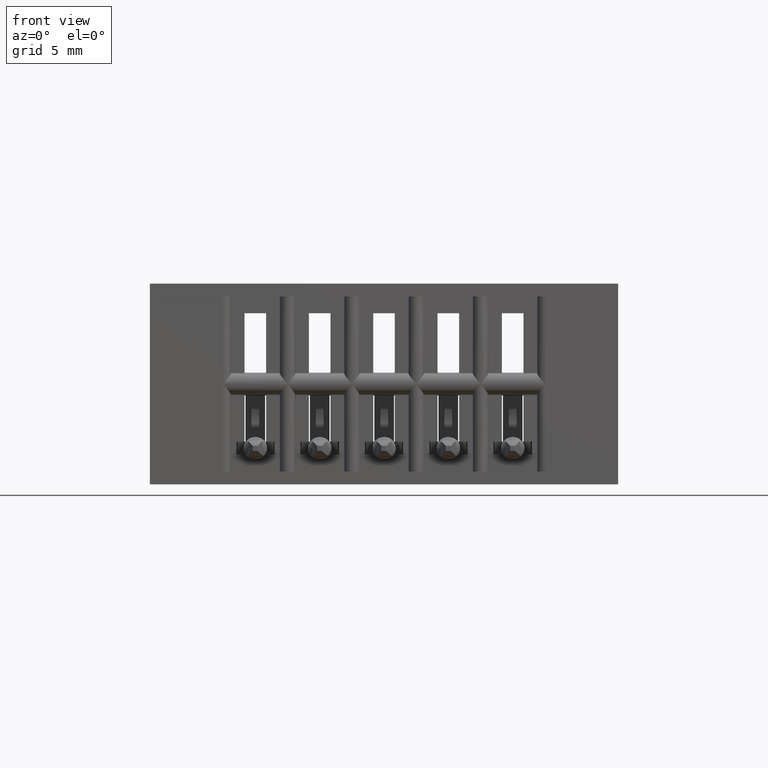
[diagram: clean part render]
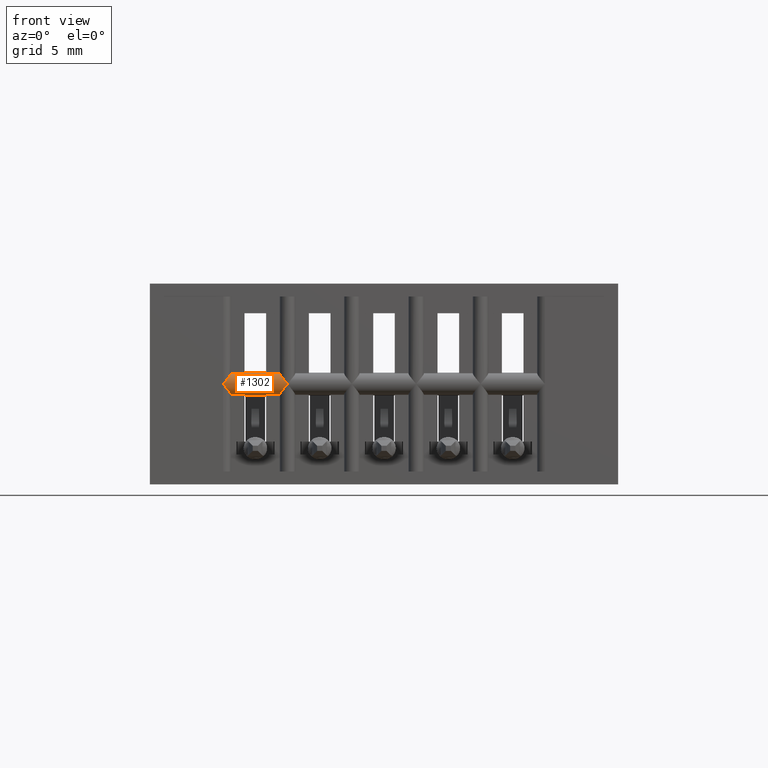
[diagram: same view with one face highlighted and labeled with its STEP entity id]
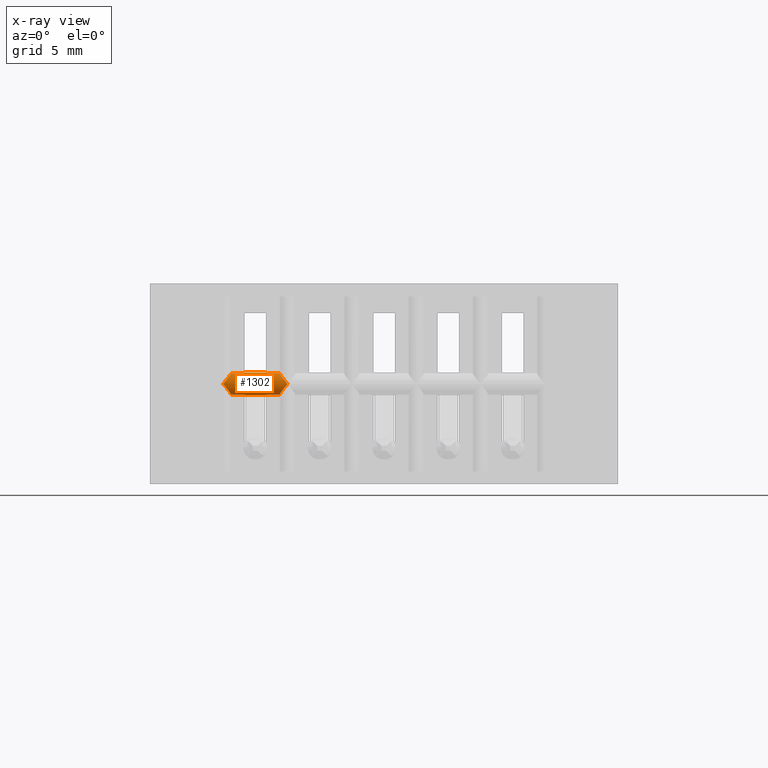
[diagram: x-ray of the same camera — body ghosted, the highlighted face saturated]
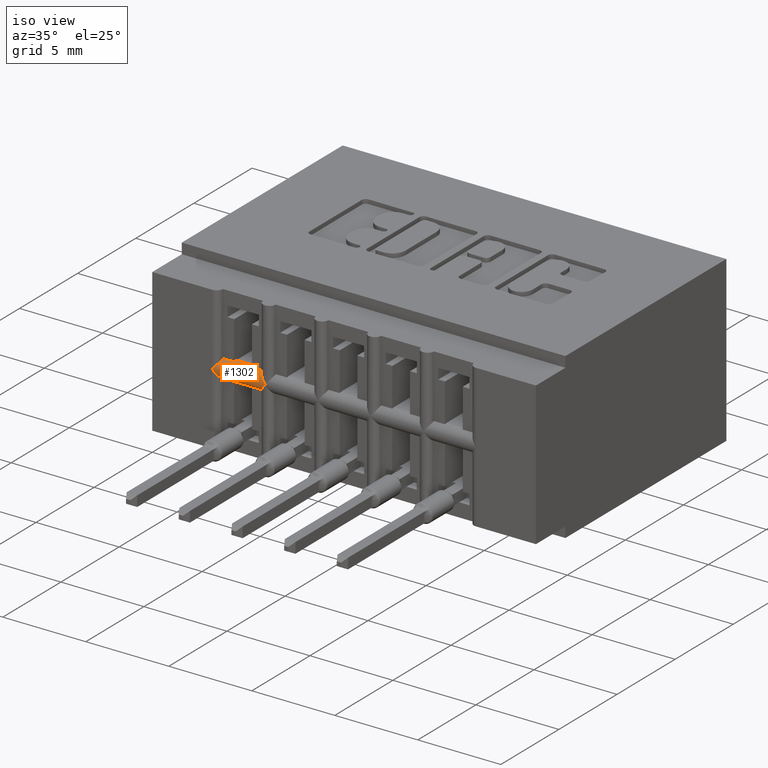
[diagram: same view with one face highlighted and labeled with its STEP entity id]
A machine part, front view. The second image highlights one B-rep face of the part: STEP entity #1302.
The next image is the same camera in x-ray: the body ghosted, the highlighted face saturated — about 0% of this face is hidden behind the body in this view.
A second angle (iso view) of the same face is appended — the face is thin or edge-on in the first view.
In plain terms, the highlighted cylindrical surface (edge-blend (fillet) strip) has radius 0.5588 mm, axis along (1, 0, -0).
Its self-contained STEP definition (entity closure, byte-faithful):
#45 = ORIENTED_EDGE ( 'NONE', *, *, #2363, .T. ) ;
#117 = CARTESIAN_POINT ( 'NONE',  ( 0.2674999999999996825, -1.387266947423259695E-17, -0.1949999999999995626 ) ) ;
#215 = CARTESIAN_POINT ( 'NONE',  ( 0.1424999999999997102, -1.440622965408893082E-17, -0.1949999999999995626 ) ) ;
#265 = CARTESIAN_POINT ( 'NONE',  ( -19685.03937007874265, 0.02199999999999999872, -0.1729999999954575929 ) ) ;
#350 = EDGE_CURVE ( 'NONE', #10636, #6744, #10037, .T. ) ;
#458 = CARTESIAN_POINT ( 'NONE',  ( 0.2607066941780518121, 0.001112354947348547776, -0.2032114395158498288 ) ) ;
#516 = EDGE_CURVE ( 'NONE', #9803, #4238, #2950, .T. ) ;
#821 = VECTOR ( 'NONE', #2335, 39.37007874015748143 ) ;
#946 = CARTESIAN_POINT ( 'NONE',  ( 0.1568510686097365214, 0.01013343672870413784, -0.1763115889313772444 ) ) ;
#952 = CARTESIAN_POINT ( 'NONE',  ( 0.2564100705385048973, 0.004727827854257393540, -0.1811941087690355223 ) ) ;
#1212 = VERTEX_POINT ( 'NONE', #3387 ) ;
#1302 = ADVANCED_FACE ( 'NONE', ( #11192 ), #5584, .T. ) ;
#1374 = CARTESIAN_POINT ( 'NONE',  ( 0.2524999999999997247, 0.01244425316742273253, -0.2149988828447380318 ) ) ;
#1408 = VERTEX_POINT ( 'NONE', #11685 ) ;
#1438 = CARTESIAN_POINT ( 'NONE',  ( 0.2524999999999996692, 0.01499999999999997169, -0.2158566536146137582 ) ) ;
#1520 = CARTESIAN_POINT ( 'NONE',  ( 0.2259999999999996179, 0.01499999999999997169, -0.2158566536146137582 ) ) ;
#1677 = CARTESIAN_POINT ( 'NONE',  ( 0.1492933058219476639, 0.001112354947348544523, -0.1867885604841493241 ) ) ;
#1746 = CARTESIAN_POINT ( 'NONE',  ( 0.2641399462884552185, -1.380597008516851364E-17, -0.1909307627898314541 ) ) ;
#1802 = CARTESIAN_POINT ( 'NONE',  ( 0.2525000000003088108, 0.01499999999999987801, -0.1741433463853854224 ) ) ;
#1924 = CARTESIAN_POINT ( 'NONE',  ( 0.1574999999999997236, 0.01244425316742273253, -0.1750011171552611766 ) ) ;
#2335 = DIRECTION ( 'NONE',  ( 1.000000000000000000, 0.0000000000000000000, -2.307304048702924629E-16 ) ) ;
#2363 = EDGE_CURVE ( 'NONE', #4238, #1212, #5450, .T. ) ;
#2384 = ORIENTED_EDGE ( 'NONE', *, *, #3707, .F. ) ;
#2538 = EDGE_CURVE ( 'NONE', #9803, #6221, #11410, .T. ) ;
#2570 = CARTESIAN_POINT ( 'NONE',  ( 0.2524999999999996692, 0.01499999999999997169, -0.2158566536146137582 ) ) ;
#2705 = CARTESIAN_POINT ( 'NONE',  ( 0.2641260018090585970, -1.230532116286759162E-17, -0.1990861248552201201 ) ) ;
#2728 = DIRECTION ( 'NONE',  ( 0.0000000000000000000, 0.0000000000000000000, -1.000000000000000000 ) ) ;
#2950 = B_SPLINE_CURVE_WITH_KNOTS ( 'NONE', 3,
 ( #1438, #1374, #3443, #9331, #9205, #458, #2705, #10586 ),
 .UNSPECIFIED., .F., .F.,
 ( 4, 2, 2, 4 ),
 ( 3.794707603699265519E-19, 0.0002018944217551013989, 0.0004037888435102024182, 0.0008075776870204026681 ),
 .UNSPECIFIED. ) ;
#2970 = VECTOR ( 'NONE', #6027, 39.37007874015748143 ) ;
#2986 = CARTESIAN_POINT ( 'NONE',  ( -19685.03937007874265, 0.01499999999999987801, -0.1741433463808434168 ) ) ;
#3075 = VERTEX_POINT ( 'NONE', #7105 ) ;
#3133 = CARTESIAN_POINT ( 'NONE',  ( 0.1839999999995913238, 0.02200000000000000566, -0.2169999999999995544 ) ) ;
#3153 = AXIS2_PLACEMENT_3D ( 'NONE', #9649, #11839, #8942 ) ;
#3244 = CARTESIAN_POINT ( 'NONE',  ( 0.1839999999995913238, 0.01499999999999987801, -0.1741433463853853947 ) ) ;
#3254 = EDGE_CURVE ( 'NONE', #1408, #1212, #3681, .T. ) ;
#3269 = DIRECTION ( 'NONE',  ( 0.0000000000000000000, 0.0000000000000000000, -1.000000000000000000 ) ) ;
#3373 = LINE ( 'NONE', #9508, #5406 ) ;
#3387 = CARTESIAN_POINT ( 'NONE',  ( 0.2525000000003088108, 0.01499999999999987801, -0.1741433463853854224 ) ) ;
#3406 = ORIENTED_EDGE ( 'NONE', *, *, #5460, .T. ) ;
#3443 = CARTESIAN_POINT ( 'NONE',  ( 0.2531489313902628435, 0.01013343672870412916, -0.2136884110686219085 ) ) ;
#3455 = ORIENTED_EDGE ( 'NONE', *, *, #10180, .T. ) ;
#3580 = CIRCLE ( 'NONE', #10190, 0.02199999999999999872 ) ;
#3584 = EDGE_CURVE ( 'NONE', #6221, #3075, #9150, .T. ) ;
#3612 = CARTESIAN_POINT ( 'NONE',  ( 0.1839999999995913238, 0.02199999999999999872, -0.1729999999999995708 ) ) ;
#3681 = LINE ( 'NONE', #9702, #11806 ) ;
#3707 = EDGE_CURVE ( 'NONE', #6744, #1408, #11195, .T. ) ;
#3781 = EDGE_CURVE ( 'NONE', #12241, #6465, #9357, .T. ) ;
#3864 = ORIENTED_EDGE ( 'NONE', *, *, #3584, .F. ) ;
#3890 = EDGE_CURVE ( 'NONE', #8855, #10636, #3580, .T. ) ;
#3924 = CARTESIAN_POINT ( 'NONE',  ( 0.2259999999991817998, 0.02199999999999999872, -0.1729999999999995985 ) ) ;
#4030 = ORIENTED_EDGE ( 'NONE', *, *, #3781, .F. ) ;
#4167 = CARTESIAN_POINT ( 'NONE',  ( 0.1458600537115372353, -1.440622965408888460E-17, -0.1990692372101734997 ) ) ;
#4238 = VERTEX_POINT ( 'NONE', #117 ) ;
#4330 = LINE ( 'NONE', #12152, #821 ) ;
#4388 = CARTESIAN_POINT ( 'NONE',  ( 19685.03937007874265, 0.01499999999999989536, -0.2158566536191556251 ) ) ;
#4432 = CARTESIAN_POINT ( 'NONE',  ( 0.1574999999984643129, 0.01499999999999989536, -0.2158566536146137305 ) ) ;
#4573 = EDGE_CURVE ( 'NONE', #10907, #6962, #11461, .T. ) ;
#4623 = CARTESIAN_POINT ( 'NONE',  ( 0.1839999999995913238, 0.01499999999999989536, -0.2158566536146137305 ) ) ;
#4644 = CARTESIAN_POINT ( 'NONE',  ( 0.1458739981909344119, -1.433953414643106543E-17, -0.1909138751447737314 ) ) ;
#4733 = CARTESIAN_POINT ( 'NONE',  ( 0.1839999999995913238, 0.02200000000000000566, -0.1949999999999995626 ) ) ;
#4799 = B_SPLINE_CURVE_WITH_KNOTS ( 'NONE', 3,
 ( #215, #4167, #8101, #12055, #8299, #9281, #9156, #4432 ),
 .UNSPECIFIED., .F., .F.,
 ( 4, 2, 2, 4 ),
 ( -4.727805137952803827E-06, 0.0003973922096147048180, 0.0005984522169910336167, 0.0007995122243673624153 ),
 .UNSPECIFIED. ) ;
#4909 = CARTESIAN_POINT ( 'NONE',  ( 0.2550975673214408435, 0.006292735182351938059, -0.1794001882551291283 ) ) ;
#4961 = ORIENTED_EDGE ( 'NONE', *, *, #8736, .T. ) ;
#5026 = AXIS2_PLACEMENT_3D ( 'NONE', #8884, #11246, #3269 ) ;
#5228 = CARTESIAN_POINT ( 'NONE',  ( 0.1424999999999997102, -1.440622965408893082E-17, -0.1949999999999995626 ) ) ;
#5397 = EDGE_LOOP ( 'NONE', ( #11091, #4961, #8833, #3455, #9991, #4030, #3406, #3864, #5629, #6241, #45, #11921, #2384, #6104 ) ) ;
#5406 = VECTOR ( 'NONE', #7297, 39.37007874015748143 ) ;
#5450 = B_SPLINE_CURVE_WITH_KNOTS ( 'NONE', 3,
 ( #8648, #1746, #8783, #952, #4909, #12597, #11882, #1802 ),
 .UNSPECIFIED., .F., .F.,
 ( 4, 2, 2, 4 ),
 ( -4.727805137953877018E-06, 0.0003973922096147038964, 0.0005984522169910327493, 0.0007995122243673616564 ),
 .UNSPECIFIED. ) ;
#5460 = EDGE_CURVE ( 'NONE', #12241, #3075, #4330, .T. ) ;
#5507 = VERTEX_POINT ( 'NONE', #11358 ) ;
#5584 = CYLINDRICAL_SURFACE ( 'NONE', #12294, 0.02199999999999999872 ) ;
#5629 = ORIENTED_EDGE ( 'NONE', *, *, #2538, .F. ) ;
#5959 = DIRECTION ( 'NONE',  ( -1.000000000000000000, -0.0000000000000000000, 2.307304048702924629E-16 ) ) ;
#6027 = DIRECTION ( 'NONE',  ( 1.000000000000000000, 0.0000000000000000000, -2.307304048702924629E-16 ) ) ;
#6104 = ORIENTED_EDGE ( 'NONE', *, *, #350, .F. ) ;
#6221 = VERTEX_POINT ( 'NONE', #1520 ) ;
#6241 = ORIENTED_EDGE ( 'NONE', *, *, #516, .T. ) ;
#6289 = CARTESIAN_POINT ( 'NONE',  ( -19685.03937007874265, 0.02200000000000000566, -0.1949999999954575847 ) ) ;
#6465 = VERTEX_POINT ( 'NONE', #4623 ) ;
#6744 = VERTEX_POINT ( 'NONE', #3924 ) ;
#6794 = LINE ( 'NONE', #2986, #10603 ) ;
#6962 = VERTEX_POINT ( 'NONE', #12269 ) ;
#7014 = CARTESIAN_POINT ( 'NONE',  ( 0.1574999999999997236, 0.01499999999999997169, -0.1741433463853853669 ) ) ;
#7105 = CARTESIAN_POINT ( 'NONE',  ( 0.2259999999999996179, 0.02200000000000000566, -0.2169999999999995821 ) ) ;
#7234 = DIRECTION ( 'NONE',  ( -1.000000000000000000, 4.930380657631322689E-32, 2.385081683068867604E-16 ) ) ;
#7297 = DIRECTION ( 'NONE',  ( 1.000000000000000000, 0.0000000000000000000, -2.307304048702924629E-16 ) ) ;
#7799 = EDGE_CURVE ( 'NONE', #5507, #6465, #3373, .T. ) ;
#8101 = CARTESIAN_POINT ( 'NONE',  ( 0.1492929970070984158, 0.001112184625638622292, -0.2032110548737721956 ) ) ;
#8150 = CARTESIAN_POINT ( 'NONE',  ( 0.1839999999995913238, 0.02200000000000000566, -0.1949999999999995626 ) ) ;
#8299 = CARTESIAN_POINT ( 'NONE',  ( 0.1549024326785585770, 0.006292735182351937191, -0.2105998117448700524 ) ) ;
#8320 = DIRECTION ( 'NONE',  ( -1.000000000000000000, -0.0000000000000000000, 2.307304048702924629E-16 ) ) ;
#8648 = CARTESIAN_POINT ( 'NONE',  ( 0.2674999999999996825, -1.387266947423259695E-17, -0.1949999999999995626 ) ) ;
#8736 = EDGE_CURVE ( 'NONE', #8855, #10907, #6794, .T. ) ;
#8783 = CARTESIAN_POINT ( 'NONE',  ( 0.2607070029929008381, 0.001112184625638620340, -0.1867889451262268463 ) ) ;
#8833 = ORIENTED_EDGE ( 'NONE', *, *, #4573, .T. ) ;
#8840 = CARTESIAN_POINT ( 'NONE',  ( 0.1549025441399073943, 0.006292904779862447395, -0.1794000259010786469 ) ) ;
#8855 = VERTEX_POINT ( 'NONE', #3244 ) ;
#8884 = CARTESIAN_POINT ( 'NONE',  ( 0.2259999999991817998, 0.02200000000000000566, -0.1949999999999995903 ) ) ;
#8942 = DIRECTION ( 'NONE',  ( 0.0000000000000000000, 0.0000000000000000000, -1.000000000000000000 ) ) ;
#9150 = CIRCLE ( 'NONE', #5026, 0.02199999999999999872 ) ;
#9156 = CARTESIAN_POINT ( 'NONE',  ( 0.1574999999999997236, 0.01244419070630512804, -0.2149988618812684604 ) ) ;
#9205 = CARTESIAN_POINT ( 'NONE',  ( 0.2564099099108574920, 0.004728007783811000696, -0.2088061091034331962 ) ) ;
#9281 = CARTESIAN_POINT ( 'NONE',  ( 0.1568510372071356129, 0.01013332474575914972, -0.2136883469824780168 ) ) ;
#9331 = CARTESIAN_POINT ( 'NONE',  ( 0.2550974558600920816, 0.006292904779862444793, -0.2105999740989205338 ) ) ;
#9357 = CIRCLE ( 'NONE', #12034, 0.02199999999999999872 ) ;
#9508 = CARTESIAN_POINT ( 'NONE',  ( -19685.03937007874265, 0.01499999999999989536, -0.2158566536100717526 ) ) ;
#9649 = CARTESIAN_POINT ( 'NONE',  ( 0.2259999999991817998, 0.02200000000000000566, -0.1949999999999995903 ) ) ;
#9702 = CARTESIAN_POINT ( 'NONE',  ( 19685.03937007874265, 0.01499999999999987801, -0.1741433463899272893 ) ) ;
#9803 = VERTEX_POINT ( 'NONE', #2570 ) ;
#9991 = ORIENTED_EDGE ( 'NONE', *, *, #7799, .T. ) ;
#10037 = LINE ( 'NONE', #265, #2970 ) ;
#10180 = EDGE_CURVE ( 'NONE', #6962, #5507, #4799, .T. ) ;
#10190 = AXIS2_PLACEMENT_3D ( 'NONE', #8150, #7234, #11180 ) ;
#10239 = DIRECTION ( 'NONE',  ( 1.000000000000000000, 0.0000000000000000000, -2.307304048702924629E-16 ) ) ;
#10522 = CARTESIAN_POINT ( 'NONE',  ( 0.1535900900891419285, 0.004728007783810998961, -0.1811938908965660122 ) ) ;
#10563 = VECTOR ( 'NONE', #8320, 39.37007874015748143 ) ;
#10586 = CARTESIAN_POINT ( 'NONE',  ( 0.2674999999999996825, -1.387266947423259695E-17, -0.1949999999999995626 ) ) ;
#10603 = VECTOR ( 'NONE', #5959, 39.37007874015748143 ) ;
#10636 = VERTEX_POINT ( 'NONE', #3612 ) ;
#10770 = CARTESIAN_POINT ( 'NONE',  ( 0.1574999999999997236, 0.01499999999999997169, -0.1741433463853853669 ) ) ;
#10806 = DIRECTION ( 'NONE',  ( 0.0000000000000000000, 0.0000000000000000000, -1.000000000000000000 ) ) ;
#10865 = DIRECTION ( 'NONE',  ( -1.000000000000000000, 4.930380657631322689E-32, 2.385081683068867604E-16 ) ) ;
#10907 = VERTEX_POINT ( 'NONE', #7014 ) ;
#11091 = ORIENTED_EDGE ( 'NONE', *, *, #3890, .F. ) ;
#11180 = DIRECTION ( 'NONE',  ( 0.0000000000000000000, 3.492419310082155312E-15, -1.000000000000000000 ) ) ;
#11192 = FACE_OUTER_BOUND ( 'NONE', #5397, .T. ) ;
#11195 = CIRCLE ( 'NONE', #3153, 0.02199999999999999872 ) ;
#11246 = DIRECTION ( 'NONE',  ( 1.000000000000000000, -4.930380657631322689E-32, -2.385081683068867604E-16 ) ) ;
#11358 = CARTESIAN_POINT ( 'NONE',  ( 0.1574999999984643129, 0.01499999999999989536, -0.2158566536146137305 ) ) ;
#11410 = LINE ( 'NONE', #4388, #10563 ) ;
#11461 = B_SPLINE_CURVE_WITH_KNOTS ( 'NONE', 3,
 ( #10770, #1924, #946, #8840, #10522, #1677, #4644, #5228 ),
 .UNSPECIFIED., .F., .F.,
 ( 4, 2, 2, 4 ),
 ( 0.0000000000000000000, 0.0002018944217551001249, 0.0004037888435102002498, 0.0008075776870204023428 ),
 .UNSPECIFIED. ) ;
#11563 = DIRECTION ( 'NONE',  ( 1.000000000000000000, 0.0000000000000000000, -2.307304048702924629E-16 ) ) ;
#11685 = CARTESIAN_POINT ( 'NONE',  ( 0.2259999999999996456, 0.01499999999999997169, -0.1741433463853854224 ) ) ;
#11806 = VECTOR ( 'NONE', #11563, 39.37007874015748143 ) ;
#11839 = DIRECTION ( 'NONE',  ( 1.000000000000000000, -4.930380657631322689E-32, -2.385081683068867604E-16 ) ) ;
#11882 = CARTESIAN_POINT ( 'NONE',  ( 0.2524999999999997247, 0.01244419070630512977, -0.1750011381187308035 ) ) ;
#11921 = ORIENTED_EDGE ( 'NONE', *, *, #3254, .F. ) ;
#12034 = AXIS2_PLACEMENT_3D ( 'NONE', #4733, #10865, #10806 ) ;
#12055 = CARTESIAN_POINT ( 'NONE',  ( 0.1535899294614945232, 0.004727827854257395275, -0.2088058912309637138 ) ) ;
#12152 = CARTESIAN_POINT ( 'NONE',  ( -19685.03937007874265, 0.02200000000000000566, -0.2169999999954575765 ) ) ;
#12241 = VERTEX_POINT ( 'NONE', #3133 ) ;
#12269 = CARTESIAN_POINT ( 'NONE',  ( 0.1424999999999997102, -1.440622965408893082E-17, -0.1949999999999995626 ) ) ;
#12294 = AXIS2_PLACEMENT_3D ( 'NONE', #6289, #10239, #2728 ) ;
#12597 = CARTESIAN_POINT ( 'NONE',  ( 0.2531489627928639741, 0.01013332474575914972, -0.1763116530175211638 ) ) ;